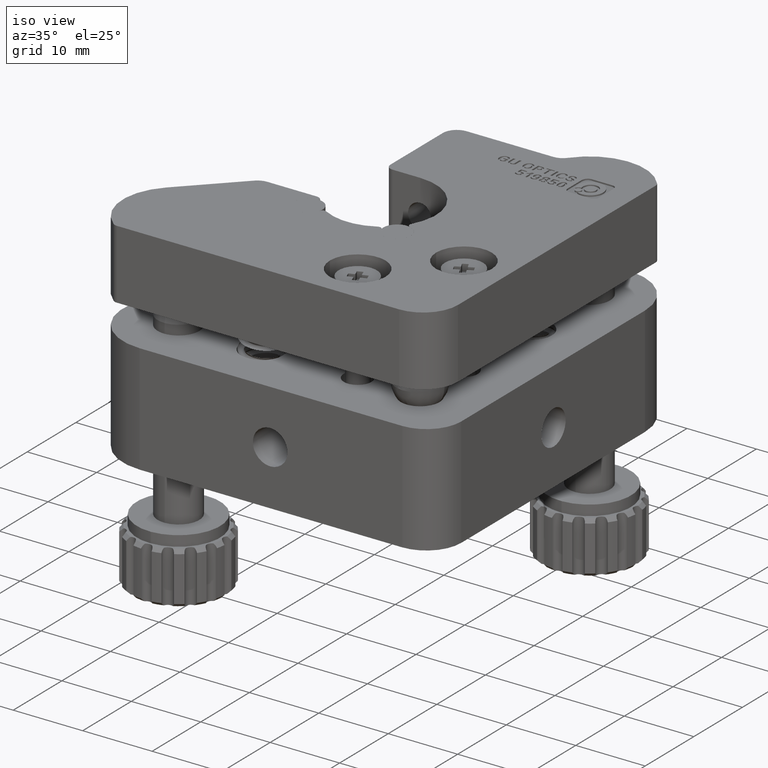
[diagram: clean part render]
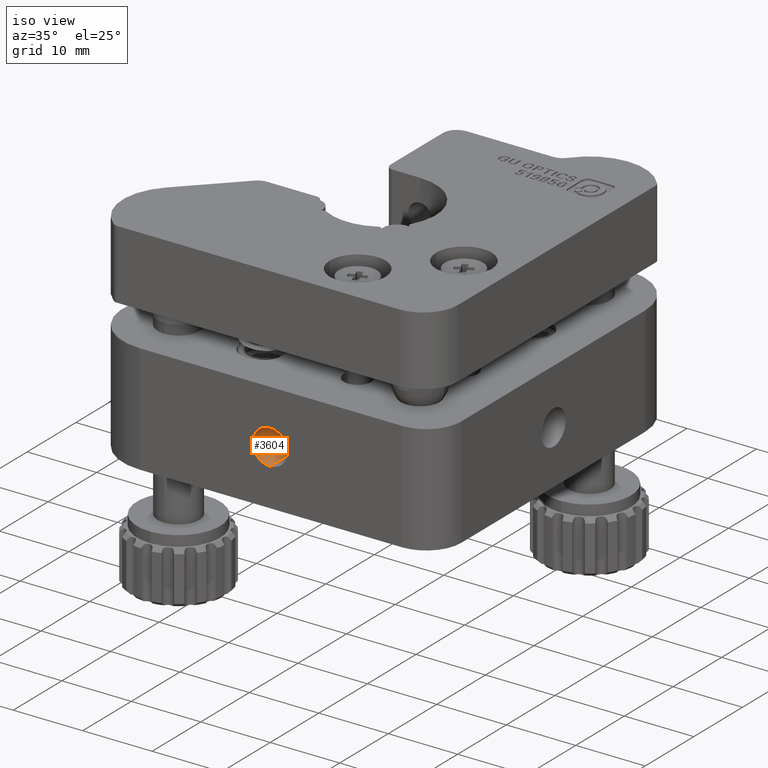
[diagram: same view with one face highlighted and labeled with its STEP entity id]
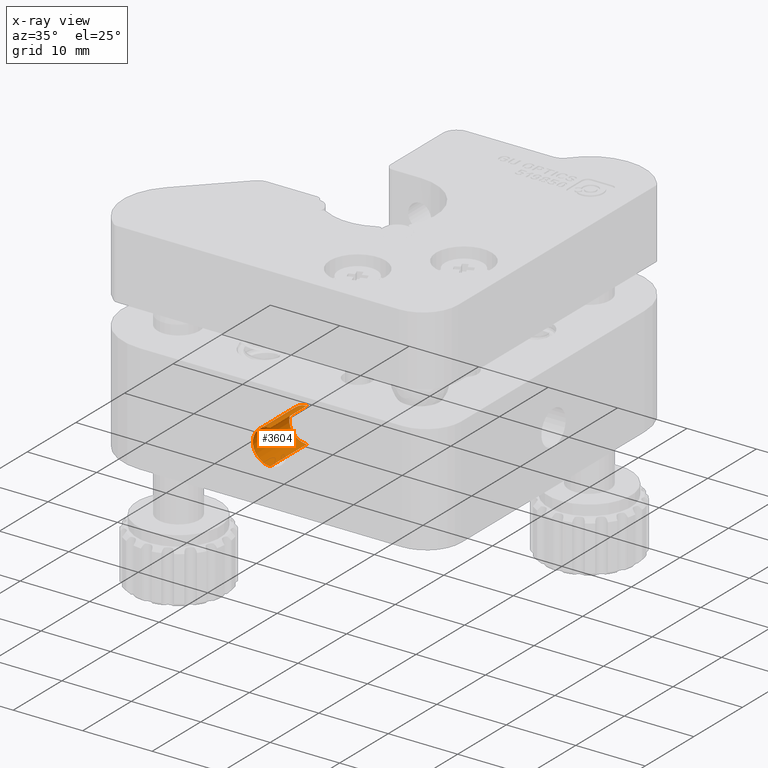
[diagram: x-ray of the same camera — body ghosted, the highlighted face saturated]
A machine part, iso view. The second image highlights one B-rep face of the part: STEP entity #3604.
The next image is the same camera in x-ray: the body ghosted, the highlighted face saturated — about 2% of this face is hidden behind the body in this view.
In plain terms, the highlighted cylindrical surface (edge-blend (fillet) strip) has radius 2.5 mm, axis along (-0, -1, -0).
Its self-contained STEP definition (entity closure, byte-faithful):
#772 = ORIENTED_EDGE ( 'NONE', *, *, #27591, .F. ) ;
#1332 = DIRECTION ( 'NONE',  ( -1.312660819503056700E-016, 1.000000000000000000, -0.0000000000000000000 ) ) ;
#1378 = DIRECTION ( 'NONE',  ( -0.0000000000000000000, -1.000000000000000000, -0.0000000000000000000 ) ) ;
#3604 = ADVANCED_FACE ( 'NONE', ( #18607 ), #29996, .F. ) ;
#4440 = CARTESIAN_POINT ( 'NONE',  ( -24.00000000000000000, 7.499999999999997300, 5.450000000000011700 ) ) ;
#4627 = LINE ( 'NONE', #35648, #8509 ) ;
#7532 = AXIS2_PLACEMENT_3D ( 'NONE', #18052, #1332, #20859 ) ;
#8509 = VECTOR ( 'NONE', #10479, 1000.000000000000000 ) ;
#10479 = DIRECTION ( 'NONE',  ( -0.0000000000000000000, -1.000000000000000000, -0.0000000000000000000 ) ) ;
#11987 = CIRCLE ( 'NONE', #28291, 2.499999999999988500 ) ;
#12538 = CARTESIAN_POINT ( 'NONE',  ( -24.00000000000000000, -4.399525701937634000E-015, 7.950000000000002000 ) ) ;
#15339 = DIRECTION ( 'NONE',  ( 0.0000000000000000000, 0.0000000000000000000, -1.000000000000000000 ) ) ;
#16271 = LINE ( 'NONE', #18101, #31109 ) ;
#16351 = ORIENTED_EDGE ( 'NONE', *, *, #24297, .T. ) ;
#16843 = AXIS2_PLACEMENT_3D ( 'NONE', #21192, #24024, #35282 ) ;
#17656 = VERTEX_POINT ( 'NONE', #24003 ) ;
#18052 = CARTESIAN_POINT ( 'NONE',  ( -24.00000000000000000, 7.499999999999997300, 7.950000000000002000 ) ) ;
#18101 = CARTESIAN_POINT ( 'NONE',  ( -24.00000000000000000, -3.150385966807336200E-015, 5.450000000000011700 ) ) ;
#18607 = FACE_OUTER_BOUND ( 'NONE', #35709, .T. ) ;
#20859 = DIRECTION ( 'NONE',  ( 1.000000000000000000, 0.0000000000000000000, 0.0000000000000000000 ) ) ;
#21192 = CARTESIAN_POINT ( 'NONE',  ( -24.00000000000000000, -3.150385966807336200E-015, 7.950000000000002000 ) ) ;
#21837 = CIRCLE ( 'NONE', #7532, 2.499999999999988500 ) ;
#23483 = ORIENTED_EDGE ( 'NONE', *, *, #30151, .T. ) ;
#24003 = CARTESIAN_POINT ( 'NONE',  ( -24.00000000000000000, 7.499999999999997300, 10.44999999999999200 ) ) ;
#24024 = DIRECTION ( 'NONE',  ( -0.0000000000000000000, -1.000000000000000000, -0.0000000000000000000 ) ) ;
#24297 = EDGE_CURVE ( 'NONE', #17656, #32934, #4627, .T. ) ;
#24893 = VERTEX_POINT ( 'NONE', #4440 ) ;
#24973 = CARTESIAN_POINT ( 'NONE',  ( -24.00000000000000000, -4.399525701937634000E-015, 5.450000000000013500 ) ) ;
#27591 = EDGE_CURVE ( 'NONE', #24893, #28630, #16271, .T. ) ;
#28291 = AXIS2_PLACEMENT_3D ( 'NONE', #12538, #32073, #15339 ) ;
#28630 = VERTEX_POINT ( 'NONE', #24973 ) ;
#29996 = CYLINDRICAL_SURFACE ( 'NONE', #16843, 2.499999999999990200 ) ;
#30151 = EDGE_CURVE ( 'NONE', #32934, #28630, #11987, .T. ) ;
#30837 = ORIENTED_EDGE ( 'NONE', *, *, #31996, .T. ) ;
#31109 = VECTOR ( 'NONE', #1378, 1000.000000000000000 ) ;
#31996 = EDGE_CURVE ( 'NONE', #24893, #17656, #21837, .T. ) ;
#32073 = DIRECTION ( 'NONE',  ( -0.0000000000000000000, -1.000000000000000000, -0.0000000000000000000 ) ) ;
#32934 = VERTEX_POINT ( 'NONE', #33165 ) ;
#33165 = CARTESIAN_POINT ( 'NONE',  ( -24.00000000000000000, -4.399525701937634000E-015, 10.44999999999999000 ) ) ;
#35282 = DIRECTION ( 'NONE',  ( 0.0000000000000000000, 0.0000000000000000000, -1.000000000000000000 ) ) ;
#35648 = CARTESIAN_POINT ( 'NONE',  ( -24.00000000000000000, -3.150385966807336200E-015, 10.44999999999999200 ) ) ;
#35709 = EDGE_LOOP ( 'NONE', ( #30837, #16351, #23483, #772 ) ) ;